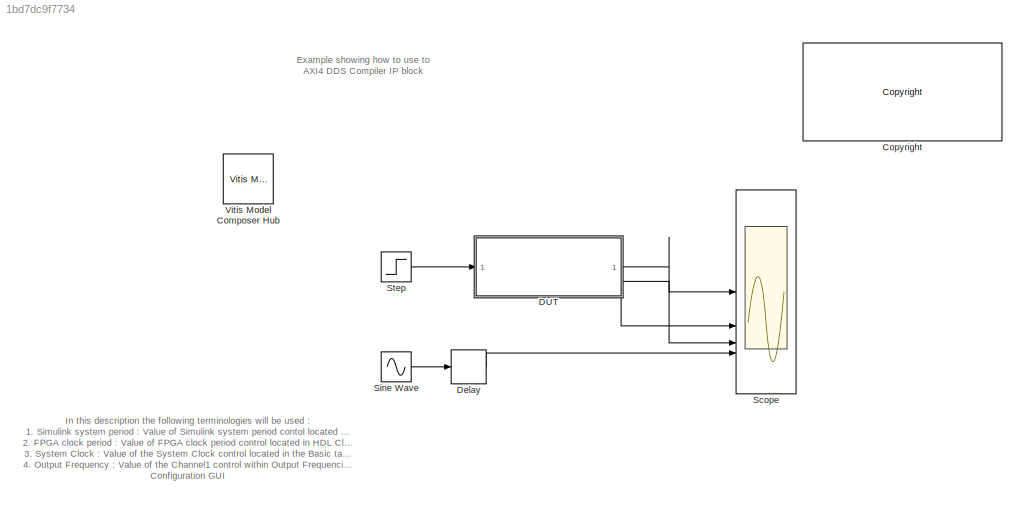
MODEL slx_1bd7dc9f7734
KIND model
CONFIG AbsTol = auto
CONFIG EnableMultiTasking = on
CONFIG FixedStep = auto
CONFIG MaxStep = auto
CONFIG MinStep = auto
CONFIG RelTol = 1e-3
CONFIG SampleTimeConstraint = Unconstrained
CONFIG SolverName = VariableStepDiscrete
CONFIG StartTime = 0.0
CONFIG StopTime = 200
BLOCK [Reference] <copyright redacted>
  SourceBlock = hdlUtilities/<copyright redacted>
  SourceType = Xilinx <copyright redacted>
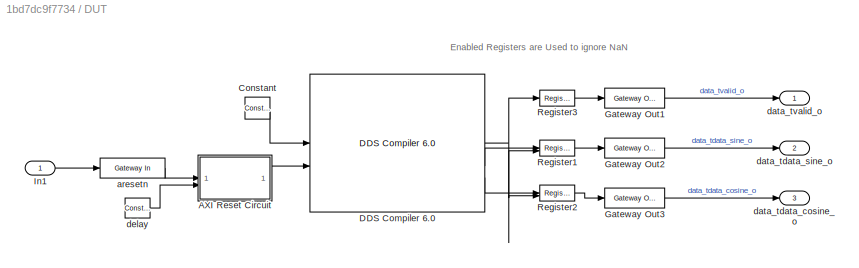
BLOCK [SubSystem] DUT
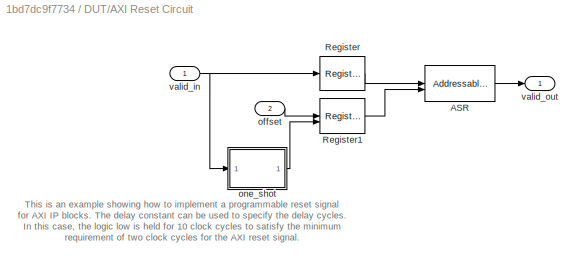
BLOCK [SubSystem] DUT/AXI Reset Circuit
BLOCK [Reference] DUT/AXI Reset Circuit/ASR  REF=hdlBasic/Addressable Shift Register
  SourceBlock = hdlBasic/Addressable Shift Register
  SourceType = Addressable Shift Register Block
BLOCK [Reference] DUT/AXI Reset Circuit/Register  REF=hdlBasic/Register
  SourceBlock = hdlBasic/Register
  SourceType = Register Block
BLOCK [Reference] DUT/AXI Reset Circuit/Register1  REF=hdlBasic/Register
  SourceBlock = hdlBasic/Register
  SourceType = Register Block
BLOCK [Inport] DUT/AXI Reset Circuit/offset
  Port = 2
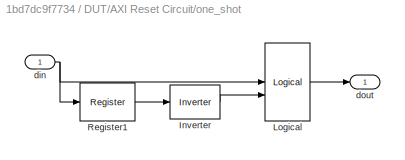
BLOCK [SubSystem] DUT/AXI Reset Circuit/one_shot
BLOCK [Reference] DUT/AXI Reset Circuit/one_shot/Inverter  REF=hdlBasic/Inverter
  SourceBlock = hdlBasic/Inverter
  SourceType = Inverter Block
BLOCK [Reference] DUT/AXI Reset Circuit/one_shot/Logical  REF=hdlBasic/Logical
  SourceBlock = hdlBasic/Logical
  SourceType = Logical Block Block
BLOCK [Reference] DUT/AXI Reset Circuit/one_shot/Register1  REF=hdlBasic/Register
  SourceBlock = hdlBasic/Register
  SourceType = Register Block
BLOCK [Inport] DUT/AXI Reset Circuit/one_shot/din
BLOCK [Outport] DUT/AXI Reset Circuit/one_shot/dout
  VectorParamsAs1DForOutWhenUnconnected = off
BLOCK [Inport] DUT/AXI Reset Circuit/valid_in
BLOCK [Outport] DUT/AXI Reset Circuit/valid_out
  VectorParamsAs1DForOutWhenUnconnected = off
BLOCK [Reference] DUT/Constant  REF=hdlBasic/Constant
  SourceBlock = hdlBasic/Constant
  SourceType = Constant Block Block
BLOCK [Reference] DUT/DDS Compiler 6.0   REF=hdlDSPIP/DDS Compiler 6.0 
  SourceBlock = hdlDSPIP/DDS Compiler 6.0
  SourceType = DDS Compiler 6.0 Block
BLOCK [Reference] DUT/Gateway Out1  REF=hdlBasic/Gateway Out
  SourceBlock = hdlBasic/Gateway Out
  SourceType = Gateway Out Block
BLOCK [Reference] DUT/Gateway Out2  REF=hdlBasic/Gateway Out
  SourceBlock = hdlBasic/Gateway Out
  SourceType = Gateway Out Block
BLOCK [Reference] DUT/Gateway Out3  REF=hdlBasic/Gateway Out
  SourceBlock = hdlBasic/Gateway Out
  SourceType = Gateway Out Block
BLOCK [Inport] DUT/In1
BLOCK [Reference] DUT/Register1  REF=hdlBasic/Register
  SourceBlock = hdlBasic/Register
  SourceType = Register Block
BLOCK [Reference] DUT/Register2  REF=hdlBasic/Register
  SourceBlock = hdlBasic/Register
  SourceType = Register Block
BLOCK [Reference] DUT/Register3  REF=hdlBasic/Register
  SourceBlock = hdlBasic/Register
  SourceType = Register Block
BLOCK [Reference] DUT/aresetn  REF=hdlBasic/Gateway In
  SourceBlock = hdlBasic/Gateway In
  SourceType = Gateway In Block
BLOCK [Outport] DUT/data_tdata_cosine_o
  Port = 3
BLOCK [Outport] DUT/data_tdata_sine_o
  Port = 2
BLOCK [Outport] DUT/data_tvalid_o
BLOCK [Reference] DUT/delay  REF=hdlBasic/Constant
  SourceBlock = hdlBasic/Constant
  SourceType = Constant Block Block
BLOCK [Delay] Delay
  DelayLength = 30
  InputPortMap = u0
BLOCK [Scope] Scope
  Floating = off
  NumInputPorts = 4
  ScopeSpecificationString = Simulink.scopes.TimeScopeBlockCfg('CurrentConfiguration', extmgr.ConfigurationSet(extmgr.Configuration('Core','General UI',true),extmgr.Configuration('Sources','WiredSimulink',true,'DataLoggingLimitDataPoints',true,'DataLoggingDecimateData',true,'DataLoggingDecimation','1','DataLoggingSaveFormat','Structure With Time'),extmgr.Configuration('Visuals','Time Domain',true,'SerializedDisplays',{struct(...<+3811ch>
BLOCK [Sin] Sine Wave
  SampleTime = 1
  Samples = 100
  SineType = Sample based
BLOCK [Step] Step
  SampleTime = 0
  Time = 5
BLOCK [Reference] Vitis Model Composer Hub  REF=vmcUtilities/Vitis Model Composer Hub
  SourceBlock = vmcUtilities/Vitis Model Composer Hub
  SourceType = VMC Hub
  Tag = genX
  UserDataPersistent = on
ANNOTATION (root): Example showing how to use to AXI4 DDS Compiler IP block
ANNOTATION (root): In this description the following terminologies will be used : 1. Simulink system period : Value of Simulink system period contol located in HDL Clock Settings tab of the Vitis Model Composer Hub Configuration GUI 2. FPGA clock period : Value of FPGA clock period control located in HDL Clock Settings of the Vitis Model Composer Hub Configuration GUI 3. System Clock : Value of the System Clock cont...<+1433ch>
ANNOTATION DUT: Enabled Registers are Used to ignore NaN
ANNOTATION DUT/AXI Reset Circuit: This is an example showing how to implement a programmable reset signal for AXI IP blocks. The delay constant can be used to specify the delay cycles. In this case, the logic low is held for 10 clock cycles to satisfy the minimum requirement of two clock cycles for the AXI reset signal.
LINE DUT/AXI Reset Circuit/ASR:1 -> DUT/AXI Reset Circuit/valid_out:1
LINE DUT/AXI Reset Circuit/Register1:1 -> DUT/AXI Reset Circuit/ASR:2
LINE DUT/AXI Reset Circuit/Register:1 -> DUT/AXI Reset Circuit/ASR:1
LINE DUT/AXI Reset Circuit/offset:1 -> DUT/AXI Reset Circuit/Register1:1
LINE DUT/AXI Reset Circuit/one_shot/Inverter:1 -> DUT/AXI Reset Circuit/one_shot/Logical:2
LINE DUT/AXI Reset Circuit/one_shot/Logical:1 -> DUT/AXI Reset Circuit/one_shot/dout:1
LINE DUT/AXI Reset Circuit/one_shot/Register1:1 -> DUT/AXI Reset Circuit/one_shot/Inverter:1
NET DUT/AXI Reset Circuit/one_shot/din:1 -> DUT/AXI Reset Circuit/one_shot/Logical:1, DUT/AXI Reset Circuit/one_shot/Register1:1
LINE DUT/AXI Reset Circuit/one_shot:1 -> DUT/AXI Reset Circuit/Register1:2
NET DUT/AXI Reset Circuit/valid_in:1 -> DUT/AXI Reset Circuit/Register:1, DUT/AXI Reset Circuit/one_shot:1
LINE DUT/AXI Reset Circuit:1 -> DUT/DDS Compiler 6.0 :2
LINE DUT/Constant:1 -> DUT/DDS Compiler 6.0 :1
NET DUT/DDS Compiler 6.0 :1 -> DUT/Register1:2, DUT/Register2:2, DUT/Register3:1
LINE DUT/DDS Compiler 6.0 :2 -> DUT/Register1:1
LINE DUT/DDS Compiler 6.0 :3 -> DUT/Register2:1
LINE DUT/Gateway Out1:1 -> DUT/data_tvalid_o:1
LINE DUT/Gateway Out2:1 -> DUT/data_tdata_sine_o:1
LINE DUT/Gateway Out3:1 -> DUT/data_tdata_cosine_o:1
LINE DUT/In1:1 -> DUT/aresetn:1
LINE DUT/Register1:1 -> DUT/Gateway Out2:1
LINE DUT/Register2:1 -> DUT/Gateway Out3:1
LINE DUT/Register3:1 -> DUT/Gateway Out1:1
LINE DUT/aresetn:1 -> DUT/AXI Reset Circuit:1
LINE DUT/delay:1 -> DUT/AXI Reset Circuit:2
LINE DUT:1 -> Scope:1
LINE DUT:2 -> Scope:2
LINE DUT:3 -> Scope:3
LINE Delay:1 -> Scope:4
LINE Sine Wave:1 -> Delay:1
LINE Step:1 -> DUT:1
note: NET lines group one-source signal fan-out (src -> all destinations, sorted); 1:1 wires keep LINE
